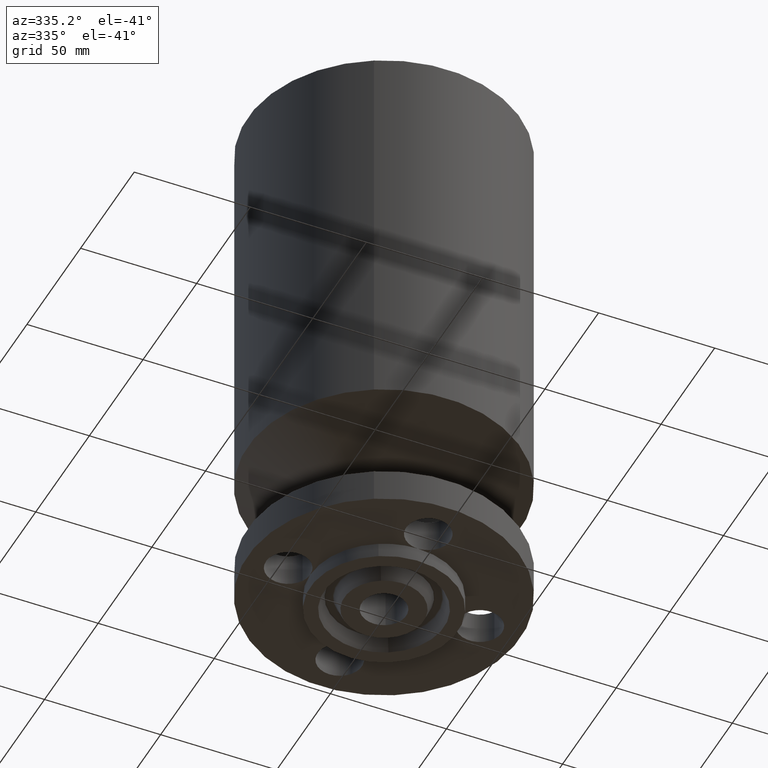
[diagram: clean part render]
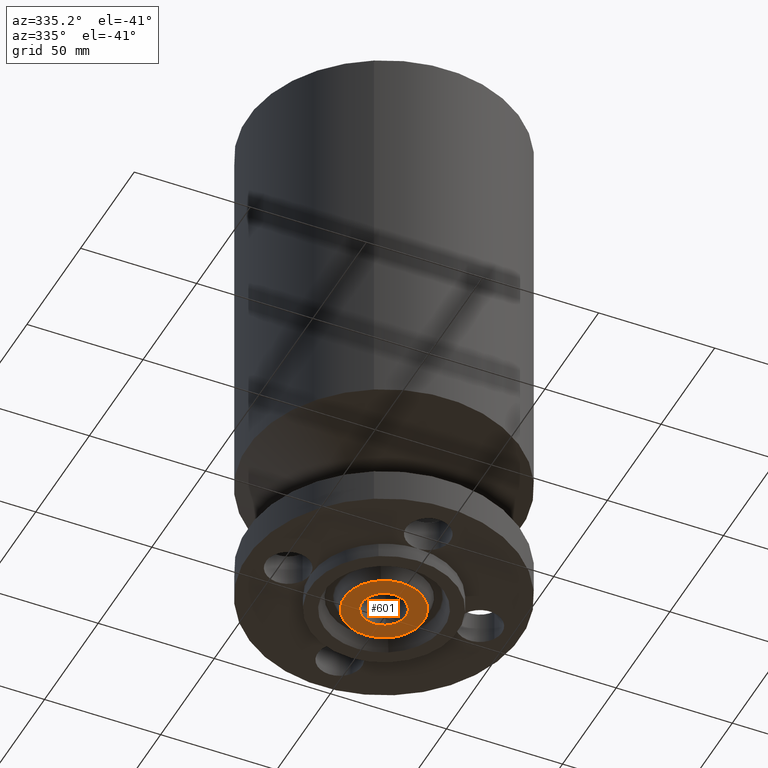
[diagram: same view with one face highlighted and labeled with its STEP entity id]
A machine part, auxiliary view. The second image highlights one B-rep face of the part: STEP entity #601.
In plain terms, the highlighted planar face has unit normal (0, 0, -1).
Its self-contained STEP definition (entity closure, byte-faithful):
#545=AXIS2_PLACEMENT_3D('Circle Axis2P3D',#543,#544,$) ;
#564=AXIS2_PLACEMENT_3D('Circle Axis2P3D',#562,#563,$) ;
#577=AXIS2_PLACEMENT_3D('Plane Axis2P3D',#574,#575,#576) ;
#581=AXIS2_PLACEMENT_3D('Circle Axis2P3D',#579,#580,$) ;
#590=AXIS2_PLACEMENT_3D('Circle Axis2P3D',#588,#589,$) ;
#540=CARTESIAN_POINT('Vertex',(0.179784576977,0.32909346071,-0.250000000001)) ;
#543=CARTESIAN_POINT('Axis2P3D Location',(0.,0.,-0.250000000001)) ;
#547=CARTESIAN_POINT('Vertex',(-0.179784576977,-0.32909346071,-0.250000000001)) ;
#562=CARTESIAN_POINT('Axis2P3D Location',(0.,0.,-0.250000000001)) ;
#574=CARTESIAN_POINT('Axis2P3D Location',(0.,0.375000000001,-0.250000000001)) ;
#579=CARTESIAN_POINT('Axis2P3D Location',(0.,0.,-0.250000000001)) ;
#583=CARTESIAN_POINT('Vertex',(-0.322173961943,-0.589735481593,-0.250000000001)) ;
#585=CARTESIAN_POINT('Vertex',(0.322173961943,0.589735481593,-0.250000000001)) ;
#588=CARTESIAN_POINT('Axis2P3D Location',(0.,0.,-0.250000000001)) ;
#544=DIRECTION('Axis2P3D Direction',(0.,0.,-0.0393700787402)) ;
#563=DIRECTION('Axis2P3D Direction',(0.,0.,-0.0393700787402)) ;
#575=DIRECTION('Axis2P3D Direction',(0.,0.,-0.0393700787402)) ;
#576=DIRECTION('Axis2P3D XDirection',(0.0393700787402,0.,0.)) ;
#580=DIRECTION('Axis2P3D Direction',(0.,0.,-0.0393700787402)) ;
#589=DIRECTION('Axis2P3D Direction',(0.,0.,-0.0393700787402)) ;
#594=ORIENTED_EDGE('',*,*,#587,.T.) ;
#595=ORIENTED_EDGE('',*,*,#592,.T.) ;
#598=ORIENTED_EDGE('',*,*,#549,.F.) ;
#599=ORIENTED_EDGE('',*,*,#566,.F.) ;
#600=FACE_BOUND('',#597,.T.) ;
#601=ADVANCED_FACE('PartBody',(#596,#600),#578,.T.) ;
#546=CIRCLE('generated circle',#545,0.375000000001) ;
#565=CIRCLE('generated circle',#564,0.375000000001) ;
#582=CIRCLE('generated circle',#581,0.672000000003) ;
#591=CIRCLE('generated circle',#590,0.672000000003) ;
#549=EDGE_CURVE('',#541,#548,#546,.T.) ;
#566=EDGE_CURVE('',#548,#541,#565,.T.) ;
#587=EDGE_CURVE('',#584,#586,#582,.T.) ;
#592=EDGE_CURVE('',#586,#584,#591,.T.) ;
#593=EDGE_LOOP('',(#594,#595)) ;
#597=EDGE_LOOP('',(#598,#599)) ;
#596=FACE_OUTER_BOUND('',#593,.T.) ;
#578=PLANE('',#577) ;
#541=VERTEX_POINT('',#540) ;
#548=VERTEX_POINT('',#547) ;
#584=VERTEX_POINT('',#583) ;
#586=VERTEX_POINT('',#585) ;